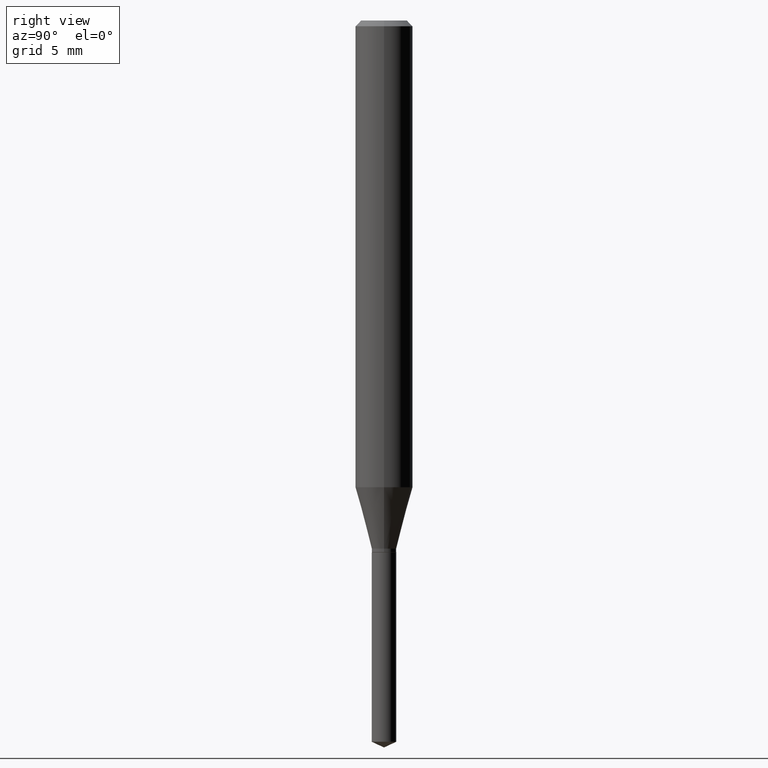
[diagram: clean part render]
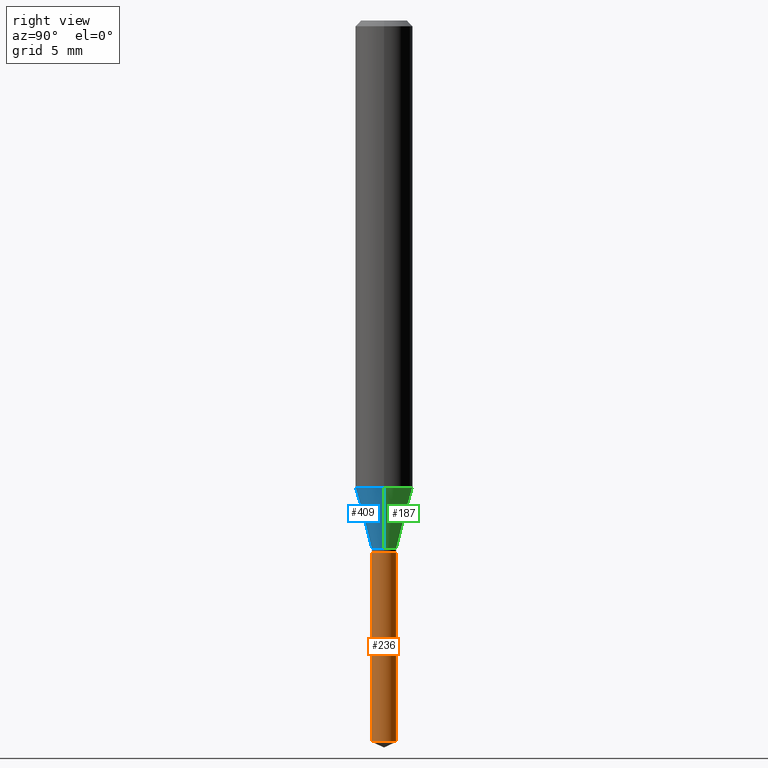
[diagram: same view with three faces highlighted in distinct colors, each labeled with its STEP entity id]
A machine part, right view with three faces highlighted in distinct colors.
Their STEP definitions:

[orange] entity #236 — the highlighted cylindrical surface (edge-blend (fillet) strip) has radius 0.6401 mm, axis along (-0, 0, 1).
#6 = EDGE_LOOP ( 'NONE', ( #86, #202, #490, #234 ) ) ;
#16 = CARTESIAN_POINT ( 'NONE',  ( -1.759706594776671726E-16, -0.02520000000000382004, -1.094499999999999806 ) ) ;
#20 = VECTOR ( 'NONE', #299, 39.37007874015748143 ) ;
#27 = EDGE_CURVE ( 'NONE', #167, #370, #353, .T. ) ;
#42 = VERTEX_POINT ( 'NONE', #259 ) ;
#43 = EDGE_CURVE ( 'NONE', #370, #42, #51, .T. ) ;
#51 = CIRCLE ( 'NONE', #308, 0.02520000000000000018 ) ;
#75 = AXIS2_PLACEMENT_3D ( 'NONE', #191, #334, #156 ) ;
#86 = ORIENTED_EDGE ( 'NONE', *, *, #368, .T. ) ;
#94 = EDGE_CURVE ( 'NONE', #488, #42, #397, .T. ) ;
#148 = DIRECTION ( 'NONE',  ( -2.445470214571802116E-29, 3.491479321953280158E-15, 1.000000000000000000 ) ) ;
#156 = DIRECTION ( 'NONE',  ( -6.982962677686266711E-15, -1.000000000000000000, 0.000000000000000000 ) ) ;
#167 = VERTEX_POINT ( 'NONE', #292 ) ;
#181 = CARTESIAN_POINT ( 'NONE',  ( 1.790567694115719708E-16, 0.02519999999999618032, -1.094500000000000028 ) ) ;
#191 = CARTESIAN_POINT ( 'NONE',  ( 3.629929841022778800E-29, -5.182576211698120707E-15, -1.484349047014493994 ) ) ;
#202 = ORIENTED_EDGE ( 'NONE', *, *, #94, .T. ) ;
#223 = DIRECTION ( 'NONE',  ( -6.982962677686266711E-15, -1.000000000000000000, 5.420333320762426626E-15 ) ) ;
#228 = FACE_OUTER_BOUND ( 'NONE', #6, .T. ) ;
#230 = AXIS2_PLACEMENT_3D ( 'NONE', #265, #148, #223 ) ;
#234 = ORIENTED_EDGE ( 'NONE', *, *, #27, .F. ) ;
#236 = ADVANCED_FACE ( 'NONE', ( #228 ), #482, .T. ) ;
#248 = VECTOR ( 'NONE', #468, 39.37007874015748143 ) ;
#259 = CARTESIAN_POINT ( 'NONE',  ( 1.790567694115816097E-16, 0.02519999999999618032, -1.094500000000000028 ) ) ;
#265 = CARTESIAN_POINT ( 'NONE',  ( 2.676565608369631794E-29, -3.821426325363822773E-15, -1.094499999999999806 ) ) ;
#292 = CARTESIAN_POINT ( 'NONE',  ( -1.759706594776576077E-16, -0.02520000000000518700, -1.484349047014493994 ) ) ;
#294 = CARTESIAN_POINT ( 'NONE',  ( 2.676565608369631794E-29, -3.821426325363822773E-15, -1.094499999999999806 ) ) ;
#299 = DIRECTION ( 'NONE',  ( -2.445470214571802396E-29, 3.491479321953280158E-15, 1.000000000000000000 ) ) ;
#303 = CARTESIAN_POINT ( 'NONE',  ( -1.759706594776671726E-16, -0.02520000000000382004, -1.094499999999999806 ) ) ;
#308 = AXIS2_PLACEMENT_3D ( 'NONE', #294, #357, #360 ) ;
#334 = DIRECTION ( 'NONE',  ( -2.445470214571802116E-29, 3.491479321953280158E-15, 1.000000000000000000 ) ) ;
#342 = CIRCLE ( 'NONE', #75, 0.02520000000000000018 ) ;
#353 = LINE ( 'NONE', #16, #248 ) ;
#357 = DIRECTION ( 'NONE',  ( -2.445470214571802116E-29, 3.491479321953280158E-15, 1.000000000000000000 ) ) ;
#360 = DIRECTION ( 'NONE',  ( -6.982962677686266711E-15, -1.000000000000000000, 5.420333320762426626E-15 ) ) ;
#368 = EDGE_CURVE ( 'NONE', #167, #488, #342, .T. ) ;
#370 = VERTEX_POINT ( 'NONE', #303 ) ;
#397 = LINE ( 'NONE', #181, #20 ) ;
#431 = CARTESIAN_POINT ( 'NONE',  ( 1.790567694115815357E-16, 0.02519999999999481335, -1.484349047014493994 ) ) ;
#468 = DIRECTION ( 'NONE',  ( -2.445470214571802396E-29, 3.491479321953280158E-15, 1.000000000000000000 ) ) ;
#482 = CYLINDRICAL_SURFACE ( 'NONE', #230, 0.02520000000000000018 ) ;
#488 = VERTEX_POINT ( 'NONE', #431 ) ;
#490 = ORIENTED_EDGE ( 'NONE', *, *, #43, .F. ) ;

[blue] entity #409 — the highlighted conical surface has half-angle 15 deg.
#71 = DIRECTION ( 'NONE',  ( 1.000000000000000000, -6.982962677686271444E-15, 0.000000000000000000 ) ) ;
#83 = VECTOR ( 'NONE', #103, 39.37007874015747433 ) ;
#85 = FACE_OUTER_BOUND ( 'NONE', #378, .T. ) ;
#101 = EDGE_CURVE ( 'NONE', #238, #278, #180, .T. ) ;
#103 = DIRECTION ( 'NONE',  ( -0.2588190451025213501, 5.211531920934551042E-15, 0.9659258262890682012 ) ) ;
#159 = VECTOR ( 'NONE', #242, 39.37007874015747433 ) ;
#161 = LINE ( 'NONE', #467, #159 ) ;
#163 = EDGE_CURVE ( 'NONE', #278, #449, #279, .T. ) ;
#171 = CARTESIAN_POINT ( 'NONE',  ( 2.657980045442624351E-29, -3.794891067188614341E-15, -1.086899999999999755 ) ) ;
#180 = LINE ( 'NONE', #445, #83 ) ;
#186 = CONICAL_SURFACE ( 'NONE', #327, 0.02520000000000000018, 0.2617993877991500740 ) ;
#211 = CARTESIAN_POINT ( 'NONE',  ( 2.349044167195312486E-29, -3.353812509542948489E-15, -0.9605700801637931940 ) ) ;
#212 = AXIS2_PLACEMENT_3D ( 'NONE', #211, #325, #404 ) ;
#238 = VERTEX_POINT ( 'NONE', #484 ) ;
#242 = DIRECTION ( 'NONE',  ( 0.2588190451025213501, 1.565188264969621968E-15, 0.9659258262890682012 ) ) ;
#269 = VERTEX_POINT ( 'NONE', #331 ) ;
#276 = CARTESIAN_POINT ( 'NONE',  ( 0.05905000000000013016, -3.766156455660323409E-15, -0.9605700801637931940 ) ) ;
#278 = VERTEX_POINT ( 'NONE', #454 ) ;
#279 = CIRCLE ( 'NONE', #212, 0.05905000000000011628 ) ;
#307 = EDGE_CURVE ( 'NONE', #238, #269, #472, .T. ) ;
#312 = ORIENTED_EDGE ( 'NONE', *, *, #307, .T. ) ;
#313 = DIRECTION ( 'NONE',  ( -2.445468806185136597E-29, 3.491481338843145583E-15, 1.000000000000000000 ) ) ;
#317 = ORIENTED_EDGE ( 'NONE', *, *, #101, .F. ) ;
#325 = DIRECTION ( 'NONE',  ( -2.445468806185136597E-29, 3.491481338843145583E-15, 1.000000000000000000 ) ) ;
#327 = AXIS2_PLACEMENT_3D ( 'NONE', #171, #313, #422 ) ;
#331 = CARTESIAN_POINT ( 'NONE',  ( 0.02520000000000000018, -3.970861726666308212E-15, -1.086899999999999755 ) ) ;
#371 = CARTESIAN_POINT ( 'NONE',  ( 2.657980045442624351E-29, -3.794891067188614341E-15, -1.086899999999999755 ) ) ;
#378 = EDGE_LOOP ( 'NONE', ( #317, #312, #414, #466 ) ) ;
#392 = AXIS2_PLACEMENT_3D ( 'NONE', #371, #451, #71 ) ;
#404 = DIRECTION ( 'NONE',  ( 1.000000000000000000, -6.982962677686266711E-15, 0.000000000000000000 ) ) ;
#409 = ADVANCED_FACE ( 'NONE', ( #85 ), #186, .T. ) ;
#414 = ORIENTED_EDGE ( 'NONE', *, *, #430, .T. ) ;
#422 = DIRECTION ( 'NONE',  ( 1.000000000000000000, -6.982962677686271444E-15, 0.000000000000000000 ) ) ;
#430 = EDGE_CURVE ( 'NONE', #269, #449, #161, .T. ) ;
#445 = CARTESIAN_POINT ( 'NONE',  ( -0.02520000000000000018, -3.615834297777069093E-15, -1.086899999999999755 ) ) ;
#449 = VERTEX_POINT ( 'NONE', #276 ) ;
#451 = DIRECTION ( 'NONE',  ( -2.445468806185136597E-29, 3.491481338843145583E-15, 1.000000000000000000 ) ) ;
#454 = CARTESIAN_POINT ( 'NONE',  ( -0.05905000000000013016, -2.934237024076608207E-15, -0.9605700801637931940 ) ) ;
#466 = ORIENTED_EDGE ( 'NONE', *, *, #163, .F. ) ;
#467 = CARTESIAN_POINT ( 'NONE',  ( 0.02520000000000000018, -3.970861726666308212E-15, -1.086899999999999755 ) ) ;
#472 = CIRCLE ( 'NONE', #392, 0.02520000000000000018 ) ;
#484 = CARTESIAN_POINT ( 'NONE',  ( -0.02520000000000000018, -3.628229056529962163E-15, -1.086899999999999755 ) ) ;

[green] entity #187 — the highlighted conical surface has half-angle 15 deg.
#32 = DIRECTION ( 'NONE',  ( -2.445468806185136597E-29, 3.491481338843145583E-15, 1.000000000000000000 ) ) ;
#39 = DIRECTION ( 'NONE',  ( 1.000000000000000000, -6.982962677686271444E-15, 0.000000000000000000 ) ) ;
#55 = DIRECTION ( 'NONE',  ( 1.000000000000000000, -6.982962677686271444E-15, 0.000000000000000000 ) ) ;
#61 = CARTESIAN_POINT ( 'NONE',  ( 2.657980045442624351E-29, -3.794891067188614341E-15, -1.086899999999999755 ) ) ;
#72 = ORIENTED_EDGE ( 'NONE', *, *, #430, .F. ) ;
#83 = VECTOR ( 'NONE', #103, 39.37007874015747433 ) ;
#101 = EDGE_CURVE ( 'NONE', #238, #278, #180, .T. ) ;
#103 = DIRECTION ( 'NONE',  ( -0.2588190451025213501, 5.211531920934551042E-15, 0.9659258262890682012 ) ) ;
#111 = DIRECTION ( 'NONE',  ( 1.000000000000000000, -6.982962677686266711E-15, 0.000000000000000000 ) ) ;
#115 = ORIENTED_EDGE ( 'NONE', *, *, #291, .T. ) ;
#134 = AXIS2_PLACEMENT_3D ( 'NONE', #268, #32, #111 ) ;
#159 = VECTOR ( 'NONE', #242, 39.37007874015747433 ) ;
#161 = LINE ( 'NONE', #467, #159 ) ;
#180 = LINE ( 'NONE', #445, #83 ) ;
#187 = ADVANCED_FACE ( 'NONE', ( #406 ), #257, .T. ) ;
#193 = EDGE_LOOP ( 'NONE', ( #115, #197, #432, #72 ) ) ;
#197 = ORIENTED_EDGE ( 'NONE', *, *, #101, .T. ) ;
#222 = AXIS2_PLACEMENT_3D ( 'NONE', #302, #270, #39 ) ;
#238 = VERTEX_POINT ( 'NONE', #484 ) ;
#242 = DIRECTION ( 'NONE',  ( 0.2588190451025213501, 1.565188264969621968E-15, 0.9659258262890682012 ) ) ;
#257 = CONICAL_SURFACE ( 'NONE', #479, 0.02520000000000000018, 0.2617993877991500740 ) ;
#268 = CARTESIAN_POINT ( 'NONE',  ( 2.349044167195312486E-29, -3.353812509542948489E-15, -0.9605700801637931940 ) ) ;
#269 = VERTEX_POINT ( 'NONE', #331 ) ;
#270 = DIRECTION ( 'NONE',  ( -2.445468806185136597E-29, 3.491481338843145583E-15, 1.000000000000000000 ) ) ;
#275 = EDGE_CURVE ( 'NONE', #449, #278, #443, .T. ) ;
#276 = CARTESIAN_POINT ( 'NONE',  ( 0.05905000000000013016, -3.766156455660323409E-15, -0.9605700801637931940 ) ) ;
#278 = VERTEX_POINT ( 'NONE', #454 ) ;
#291 = EDGE_CURVE ( 'NONE', #269, #238, #457, .T. ) ;
#302 = CARTESIAN_POINT ( 'NONE',  ( 2.657980045442624351E-29, -3.794891067188614341E-15, -1.086899999999999755 ) ) ;
#331 = CARTESIAN_POINT ( 'NONE',  ( 0.02520000000000000018, -3.970861726666308212E-15, -1.086899999999999755 ) ) ;
#362 = DIRECTION ( 'NONE',  ( -2.445468806185136597E-29, 3.491481338843145583E-15, 1.000000000000000000 ) ) ;
#406 = FACE_OUTER_BOUND ( 'NONE', #193, .T. ) ;
#430 = EDGE_CURVE ( 'NONE', #269, #449, #161, .T. ) ;
#432 = ORIENTED_EDGE ( 'NONE', *, *, #275, .F. ) ;
#443 = CIRCLE ( 'NONE', #134, 0.05905000000000011628 ) ;
#445 = CARTESIAN_POINT ( 'NONE',  ( -0.02520000000000000018, -3.615834297777069093E-15, -1.086899999999999755 ) ) ;
#449 = VERTEX_POINT ( 'NONE', #276 ) ;
#454 = CARTESIAN_POINT ( 'NONE',  ( -0.05905000000000013016, -2.934237024076608207E-15, -0.9605700801637931940 ) ) ;
#457 = CIRCLE ( 'NONE', #222, 0.02520000000000000018 ) ;
#467 = CARTESIAN_POINT ( 'NONE',  ( 0.02520000000000000018, -3.970861726666308212E-15, -1.086899999999999755 ) ) ;
#479 = AXIS2_PLACEMENT_3D ( 'NONE', #61, #362, #55 ) ;
#484 = CARTESIAN_POINT ( 'NONE',  ( -0.02520000000000000018, -3.628229056529962163E-15, -1.086899999999999755 ) ) ;